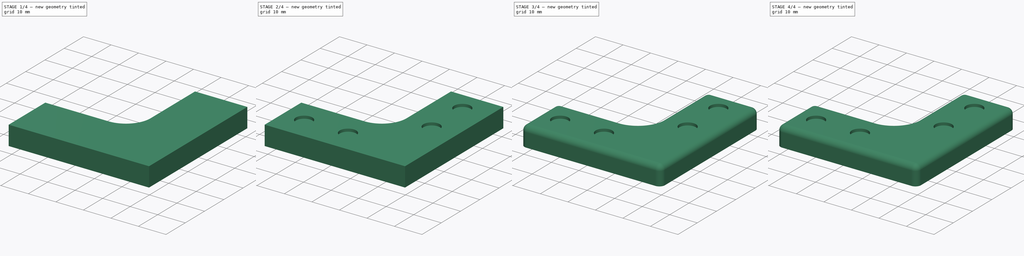
[diagram: build sequence overview — one tinted view per stage of 4, left to right]
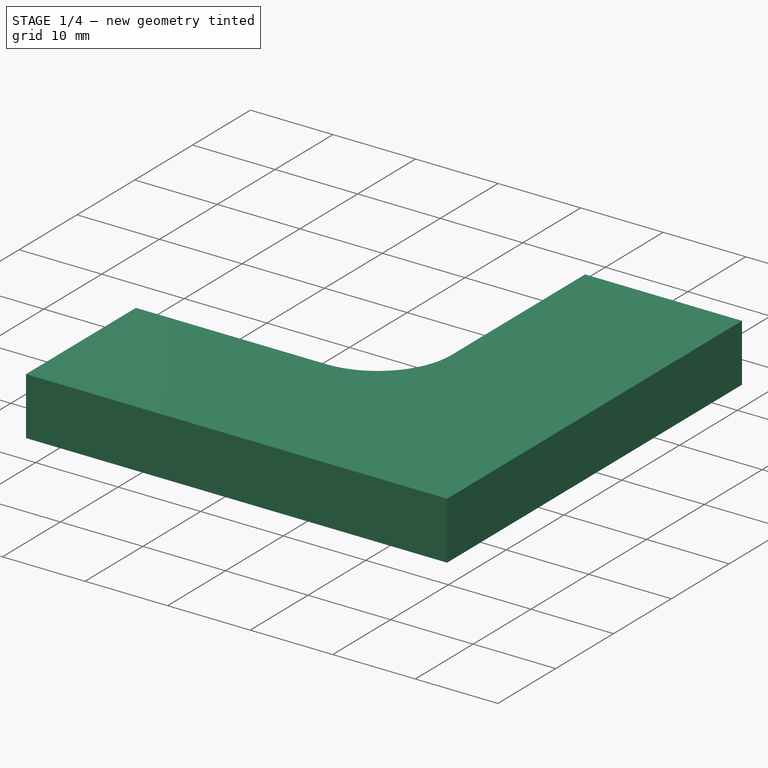
[diagram: stage 1 of 4 — iso view after this stage's code; geometry added in this stage tinted green]
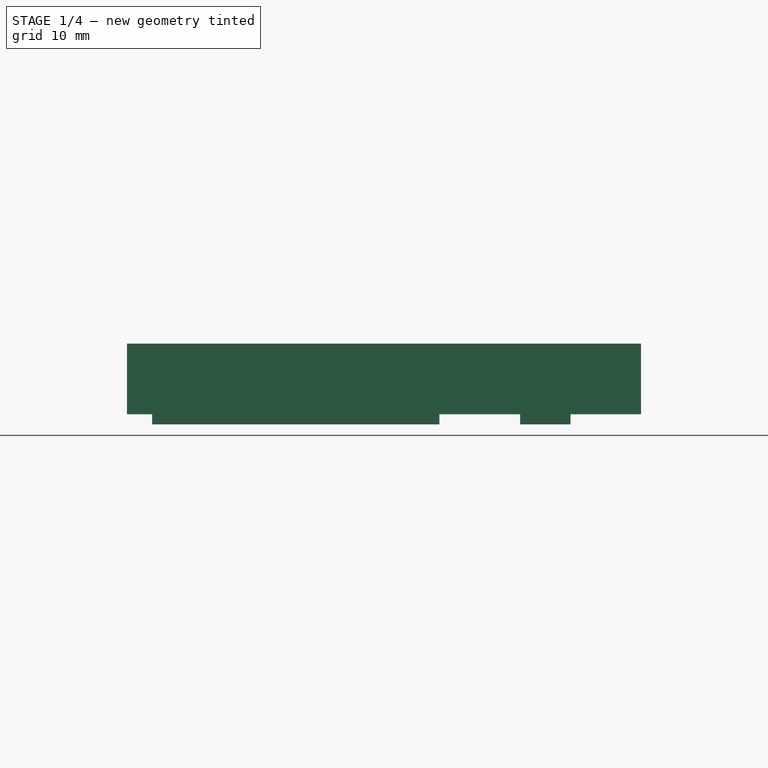
[diagram: stage 1 of 4 — front view after this stage's code; geometry added in this stage tinted green]
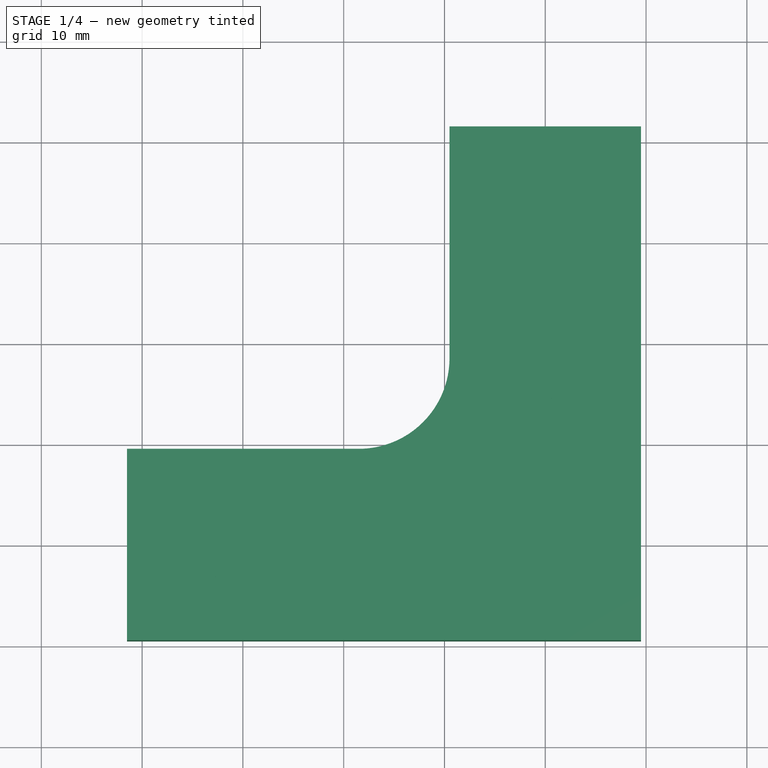
[diagram: stage 1 of 4 — top view after this stage's code; geometry added in this stage tinted green]
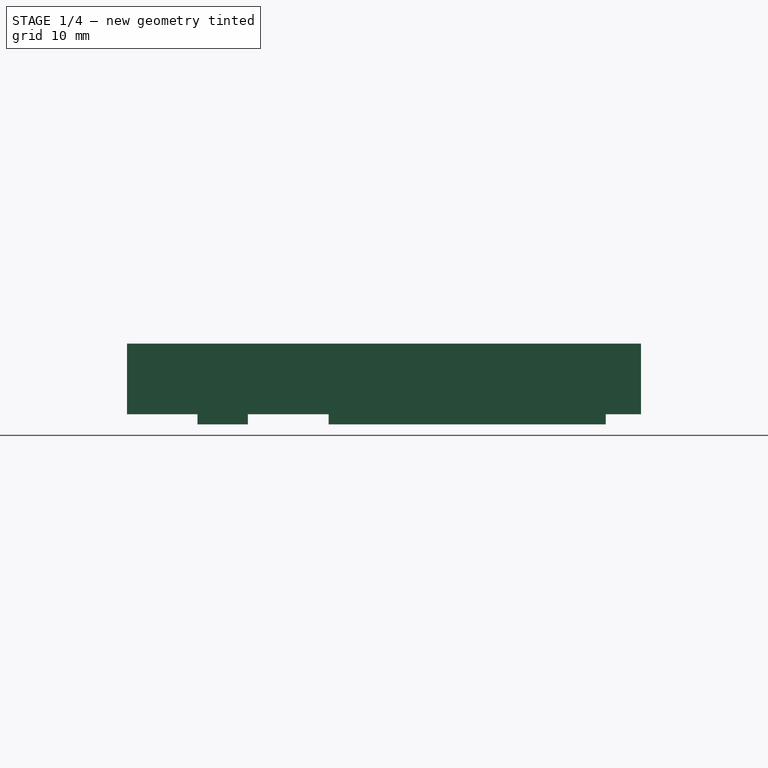
[diagram: stage 1 of 4 — right view after this stage's code; geometry added in this stage tinted green]
FCSTD DOCUMENT  (FreeCAD 0.15R4671 (Git))
Label: bracket1
License: All rights reserved
LicenseURL: https://ru.wikipedia.org/wiki/All_rights_reserved
objects: Sketcher::SketchObject×8, PartDesign::Pad×4, PartDesign::Pocket×4, Part::Feature×2, Part::Fillet×1, Part::Chamfer×1
note: 28 computed .brp shape members not serialized (recipe doc carries the construction recipe); baked Part::Feature solids carry a one-line shape summary decoded from their .brp

FEATURE [Sketcher::SketchObject] Sketch001
  sketch-geometry (7):
    g0: LineSegment StartX=-9.5 StartY=41.5 StartZ=0 EndX=9.5 EndY=41.5 EndZ=0
    g1: LineSegment StartX=9.5 StartY=41.5 StartZ=0 EndX=9.5 EndY=-9.5 EndZ=0
    g2: LineSegment StartX=9.5 StartY=-9.5 StartZ=0 EndX=-41.5 EndY=-9.5 EndZ=0
    g3: LineSegment StartX=-41.5 StartY=-9.5 StartZ=0 EndX=-41.5 EndY=9.5 EndZ=0
    g4: LineSegment StartX=-41.5 StartY=9.5 StartZ=0 EndX=-18.5 EndY=9.5 EndZ=0
    g5: LineSegment StartX=-9.5 StartY=18.5 StartZ=0 EndX=-9.5 EndY=41.5 EndZ=0
    g6: ArcOfCircle CenterX=-18.5 CenterY=18.5 CenterZ=0 NormalX=0 NormalY=0 NormalZ=1 Radius=9 StartAngle=4.71239 EndAngle=6.28319
  constraints (20):
    c: Horizontal(g0)
    c: Coincident(g0,g1)
    c: Vertical(g1)
    c: Coincident(g1,g2)
    c: Horizontal(g2)
    c: Coincident(g2,g3)
    c: Vertical(g3)
    c: Coincident(g3,g4)
    c: Horizontal(g4)
    c: Vertical(g5)
    c: Symmetric(g2,g3,g-1)
    c: Symmetric(g0,g0,g-2)
    c: Equal(g5,g4)
    c: Coincident(g5,g0)
    c: Equal(g1,g2)
    c: DistanceY(g3) = 19
    c: DistanceY(g1) = -51
    c: Tangent(g4,g6) = -1.5708
    c: Tangent(g5,g6) = -1.5708
    c: Radius(g6) = 9
FEATURE [PartDesign::Pad] Pad  label="body"
  Length = 7
  Length2 = 100
  Sketch = -> Sketch001
  Type = 0
FEATURE [Part::Feature] Pocket004
  shape: bbox 51 x 51 x 8 mm, 52 faces (baked)
FEATURE [Part::Chamfer] Chamfer
  Base = -> Pocket004
  Edges = 4 edges r=0.4: [Edge93,Edge94,Edge95,Edge96]
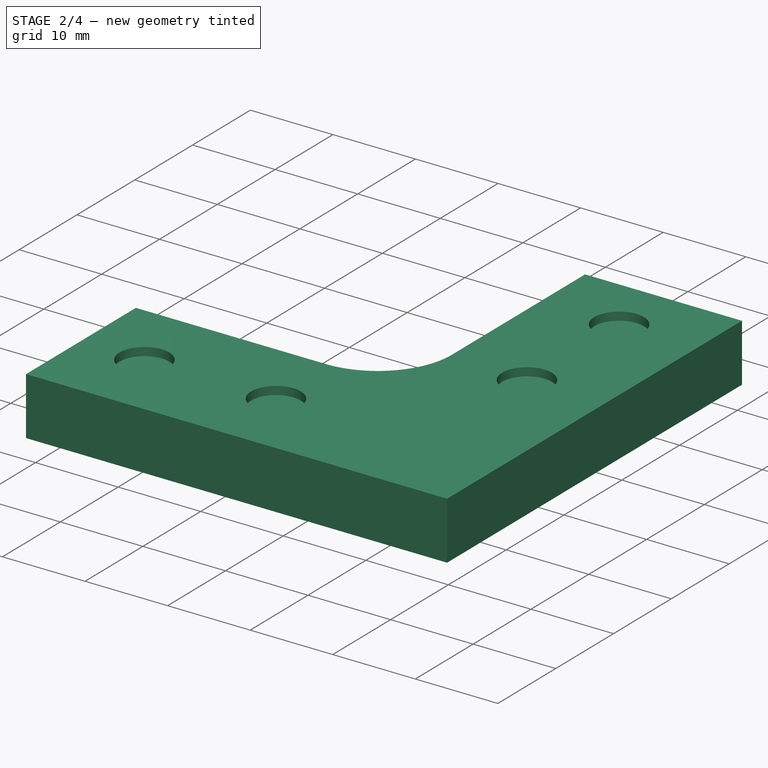
[diagram: stage 2 of 4 — iso view after this stage's code; geometry added in this stage tinted green]
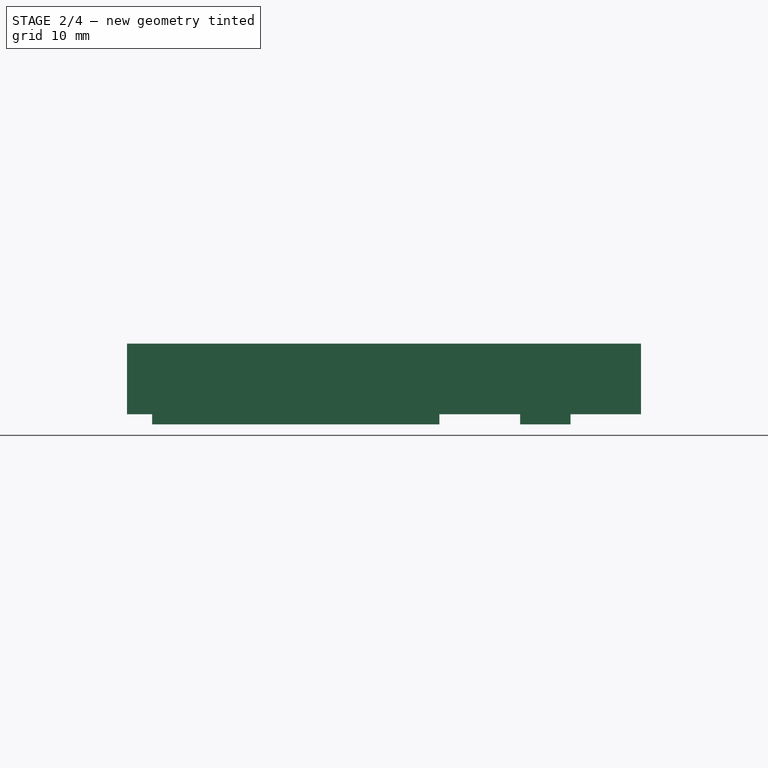
[diagram: stage 2 of 4 — front view after this stage's code; geometry added in this stage tinted green]
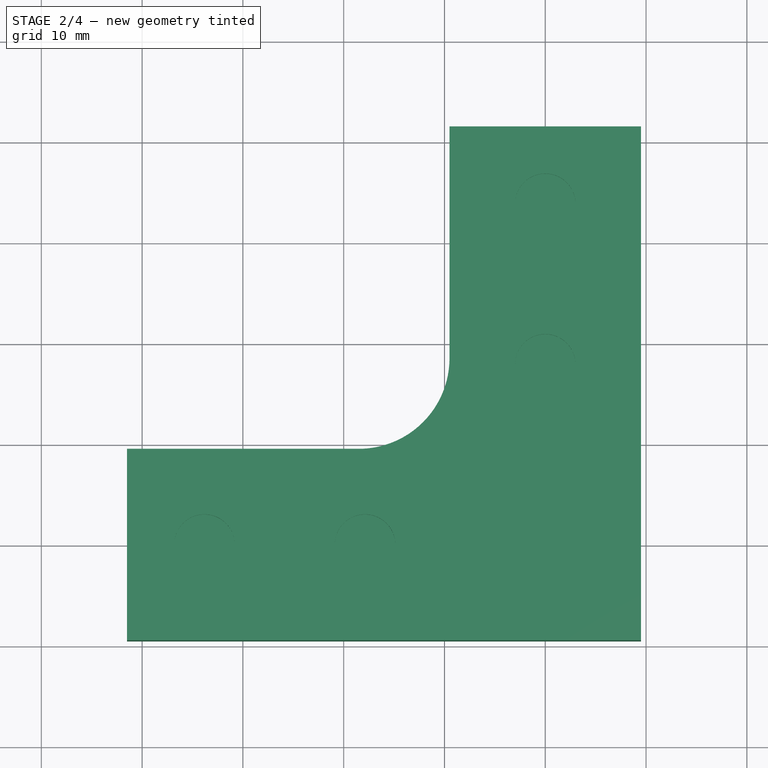
[diagram: stage 2 of 4 — top view after this stage's code; geometry added in this stage tinted green]
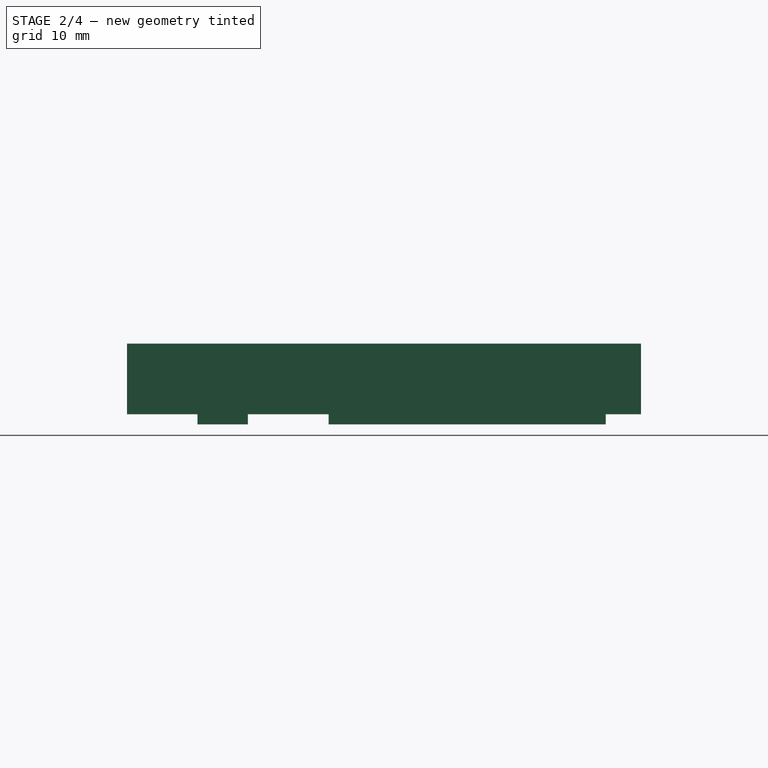
[diagram: stage 2 of 4 — right view after this stage's code; geometry added in this stage tinted green]
FEATURE [Sketcher::SketchObject] Sketch003  label="m3 heads"
  Placement = pos=(0,0,7) rot=(0,0,1;0rad)
  Support = -> Pad [Face9]
  sketch-geometry (8):
    g0: Circle CenterX=0 CenterY=33.8138 CenterZ=0 NormalX=0 NormalY=0 NormalZ=1 Radius=3
    g1: Circle CenterX=0 CenterY=17.8813 CenterZ=0 NormalX=0 NormalY=0 NormalZ=1 Radius=3
    g2: Circle CenterX=-17.8813 CenterY=0 CenterZ=0 NormalX=0 NormalY=0 NormalZ=1 Radius=3
    g3: Circle CenterX=-33.8138 CenterY=0 CenterZ=0 NormalX=0 NormalY=0 NormalZ=1 Radius=3
    g4: LineSegment [constr] StartX=0 StartY=33.8138 StartZ=0 EndX=0 EndY=17.8813 EndZ=0
    g5: LineSegment [constr] StartX=-33.8138 StartY=0 StartZ=0 EndX=-17.8813 EndY=0 EndZ=0
    g6: LineSegment [constr] StartX=-17.8813 StartY=0 StartZ=0 EndX=0 EndY=0 EndZ=0
    g7: LineSegment [constr] StartX=0 StartY=17.8813 StartZ=0 EndX=0 EndY=0 EndZ=0
  constraints (18):
    c: Radius(g0) = 3
    c: Radius(g1) = 3
    c: Radius(g3) = 3
    c: Radius(g2) = 3
    c: Vertical(g4)
    c: Coincident(g0,g4)
    c: Coincident(g1,g4)
    c: Coincident(g5,g3)
    c: Horizontal(g5)
    c: Coincident(g2,g5)
    c: Equal(g5,g4)
    c: Coincident(g6,g2)
    c: Coincident(g6,g-1)
    c: Horizontal(g6)
    c: Coincident(g7,g1)
    c: Vertical(g7)
    c: Coincident(g6,g7)
    c: Equal(g7,g6)
FEATURE [PartDesign::Pocket] Pocket
  Length = 1
  Sketch = -> Sketch003
  Type = 0
FEATURE [Sketcher::SketchObject] Sketch004  label="3mm holes"
  ExternalGeometry = -> [Pocket]
  Placement = pos=(0,0,0) rot=(1,0,0;3.14159rad)
  Support = -> Pocket [Face4]
  sketch-geometry (4):
    g0: Circle CenterX=-17.8813 CenterY=0 CenterZ=0 NormalX=0 NormalY=0 NormalZ=1 Radius=1.6
    g1: Circle CenterX=-33.8138 CenterY=0 CenterZ=0 NormalX=0 NormalY=0 NormalZ=1 Radius=1.6
    g2: Circle CenterX=0 CenterY=-17.8813 CenterZ=0 NormalX=0 NormalY=0 NormalZ=1 Radius=1.6
    g3: Circle CenterX=0 CenterY=-33.8138 CenterZ=0 NormalX=0 NormalY=0 NormalZ=1 Radius=1.6
  constraints (8):
    c: Coincident(g0,g-3)
    c: Radius(g0) = 1.6
    c: Coincident(g1,g-4)
    c: Radius(g1) = 1.6
    c: Radius(g2) = 1.6
    c: Radius(g3) = 1.6
    c: Coincident(g2,g-5)
    c: Coincident(g3,g-6)
FEATURE [PartDesign::Pocket] Pocket001
  Length = 5
  Sketch = -> Sketch004
  Type = 1
FEATURE [Sketcher::SketchObject] Sketch005  label="0.2mm print pads"
  ExternalGeometry = -> [Pocket001]
  Placement = pos=(0,0,6) rot=(0,0,1;0rad)
  Support = -> Pocket001 [Face21]
  sketch-geometry (4):
    g0: Circle CenterX=-33.8138 CenterY=0 CenterZ=0 NormalX=0 NormalY=0 NormalZ=1 Radius=2.16749
    g1: Circle CenterX=-17.8813 CenterY=0 CenterZ=0 NormalX=0 NormalY=0 NormalZ=1 Radius=2.14833
    g2: Circle CenterX=0 CenterY=17.8813 CenterZ=0 NormalX=0 NormalY=0 NormalZ=1 Radius=2.16578
    g3: Circle CenterX=0 CenterY=33.8138 CenterZ=0 NormalX=0 NormalY=0 NormalZ=1 Radius=2.45193
  constraints (4):
    c: Coincident(g0,g-3)
    c: Coincident(g1,g-4)
    c: Coincident(g2,g-5)
    c: Coincident(g3,g-6)
FEATURE [PartDesign::Pad] Pad001
  Length = 0.2
  Length2 = 100
  Reversed = true
  Sketch = -> Sketch005
  Type = 0
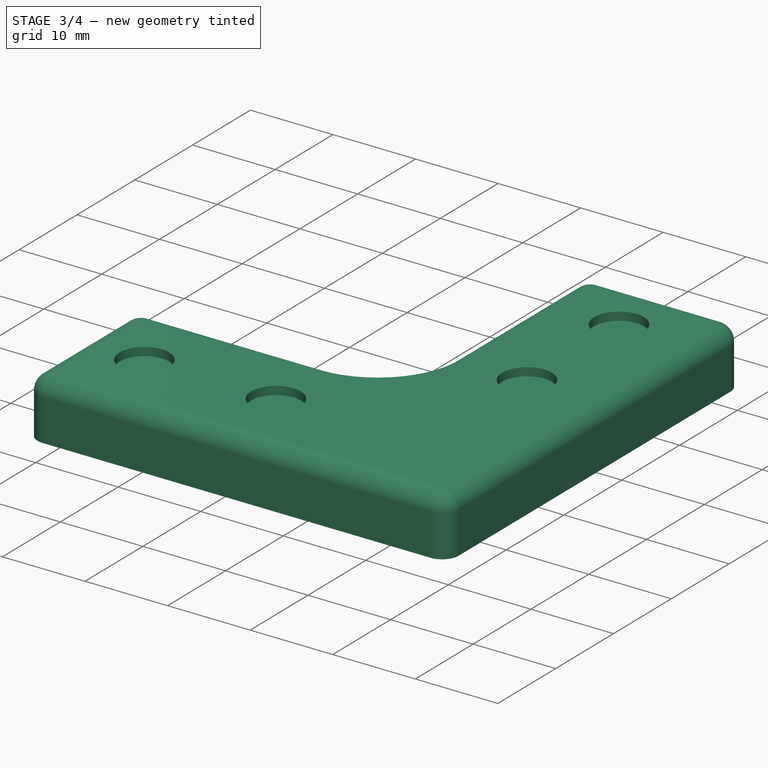
[diagram: stage 3 of 4 — iso view after this stage's code; geometry added in this stage tinted green]
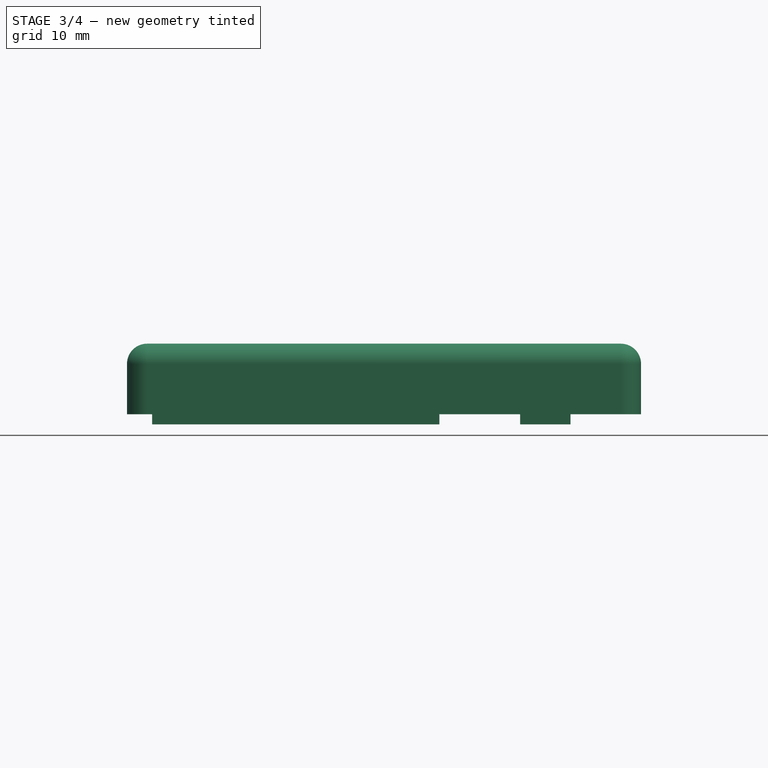
[diagram: stage 3 of 4 — front view after this stage's code; geometry added in this stage tinted green]
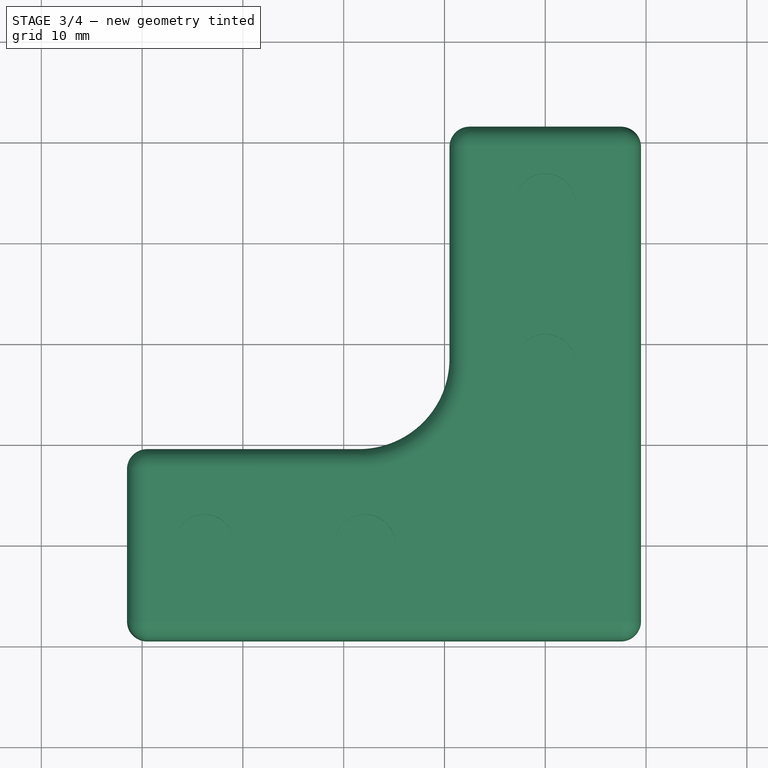
[diagram: stage 3 of 4 — top view after this stage's code; geometry added in this stage tinted green]
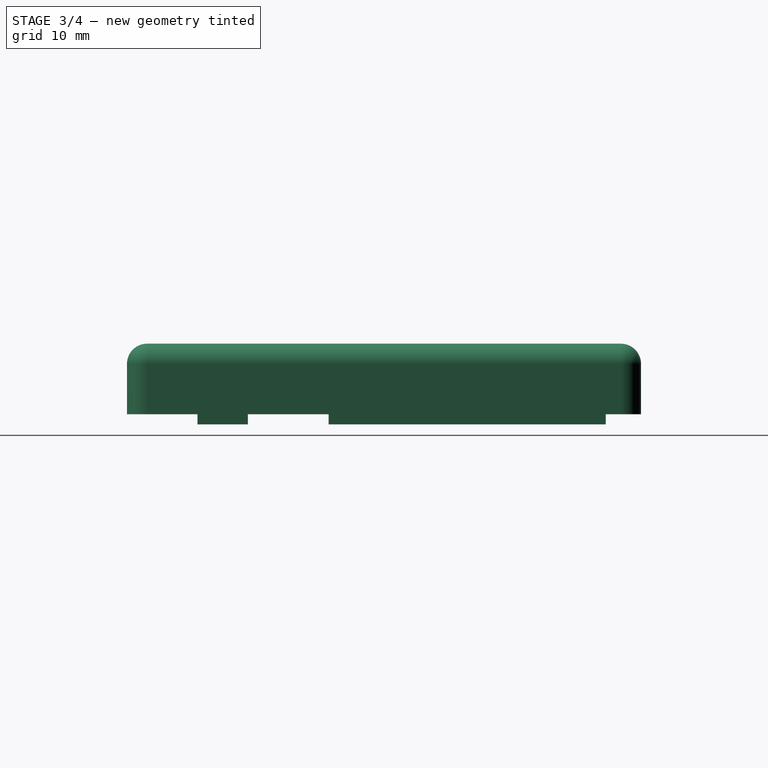
[diagram: stage 3 of 4 — right view after this stage's code; geometry added in this stage tinted green]
FEATURE [Part::Fillet] Fillet
  Base = -> Pad001
  Edges = 12 edges r=2: [Edge1,Edge2,Edge4,Edge7,Edge8,Edge10,Edge19,Edge20,Edge21,Edge22,Edge28,Edge29]
FEATURE [Part::Feature] Part__Feature  label="Brackets & Base017"
  Placement = pos=(53.705,164.6,-192.36) rot=(0,1,0;3.14159rad)
  shape: bbox 51 x 51 x 9 mm, 70 faces (baked)
FEATURE [Sketcher::SketchObject] Sketch
  ExternalGeometry = -> [Fillet]
  Placement = pos=(0,0,0) rot=(1,0,0;3.14159rad)
  Support = -> Fillet [Face2]
  sketch-geometry (7):
    g0: LineSegment StartX=-39 StartY=2.5 StartZ=0 EndX=-10.5 EndY=2.5 EndZ=0
    g1: LineSegment StartX=-10.5 StartY=2.5 StartZ=0 EndX=-10.5 EndY=-2.5 EndZ=0
    g2: LineSegment StartX=-10.5 StartY=-2.5 StartZ=0 EndX=-39 EndY=-2.5 EndZ=0
    g3: LineSegment StartX=-39 StartY=-2.5 StartZ=0 EndX=-39 EndY=2.5 EndZ=0
    g4: GeomPoint [constr] X=9.5 Y=1 Z=0
    g5: LineSegment [constr] StartX=-39 StartY=2.5 StartZ=0 EndX=-39 EndY=9.5 EndZ=0
    g6: LineSegment StartX=-39 StartY=-2.5 StartZ=0 EndX=-39 EndY=-9.5 EndZ=0
  constraints (18):
    c: Coincident(g0,g1)
    c: Coincident(g1,g2)
    c: Coincident(g2,g3)
    c: Coincident(g3,g0)
    c: Horizontal(g0)
    c: Horizontal(g2)
    c: Vertical(g1)
    c: Vertical(g3)
    c: DistanceY(g3) = 5
    c: PointOnObject(g4,g-5)
    c: DistanceX(g0,g4) = 20
    c: Vertical(g5)
    c: Coincident(g0,g5)
    c: PointOnObject(g5,g-3)
    c: Coincident(g6,g2)
    c: PointOnObject(g6,g-4)
    c: Vertical(g6)
    c: Equal(g5,g6)
FEATURE [PartDesign::Pad] Pad002
  Length = 1
  Length2 = 100
  Sketch = -> Sketch
  Type = 0
FEATURE [Sketcher::SketchObject] Sketch006
  ExternalGeometry = -> [Pad002]
  Placement = pos=(0,0,-1) rot=(1,0,0;3.14159rad)
  Support = -> Pad002 [Face1]
  sketch-geometry (2):
    g0: Circle CenterX=-33.8138 CenterY=0 CenterZ=0 NormalX=0 NormalY=0 NormalZ=1 Radius=1.6
    g1: Circle CenterX=-17.8813 CenterY=0 CenterZ=0 NormalX=0 NormalY=0 NormalZ=1 Radius=1.6
  constraints (4):
    c: Equal(g-3,g0)
    c: Coincident(g0,g-3)
    c: Coincident(g1,g-4)
    c: Equal(g-4,g1)
FEATURE [PartDesign::Pocket] Pocket002
  Length = 2
  Sketch = -> Sketch006
  Type = 0
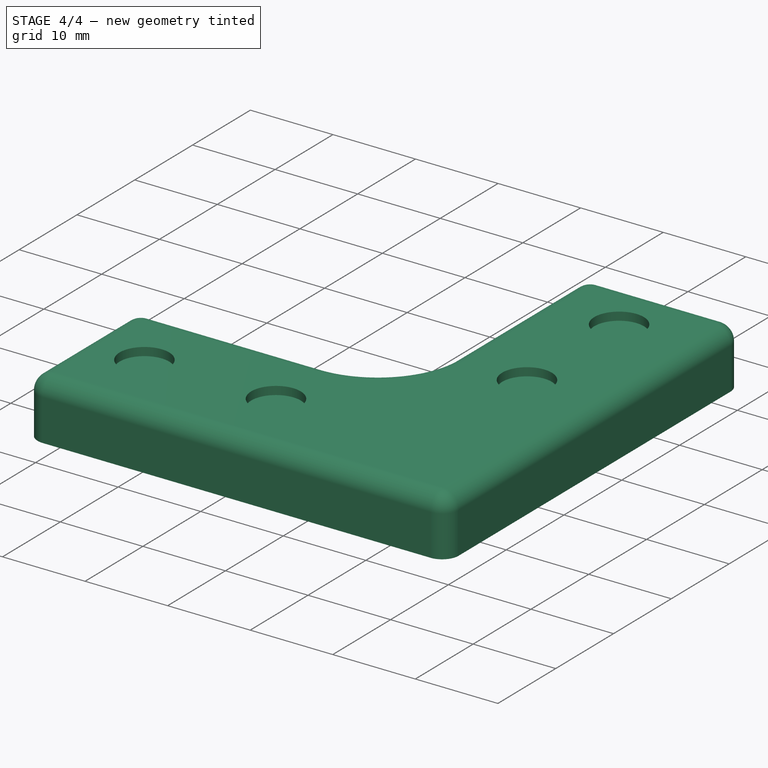
[diagram: stage 4 of 4 — iso view after this stage's code; geometry added in this stage tinted green]
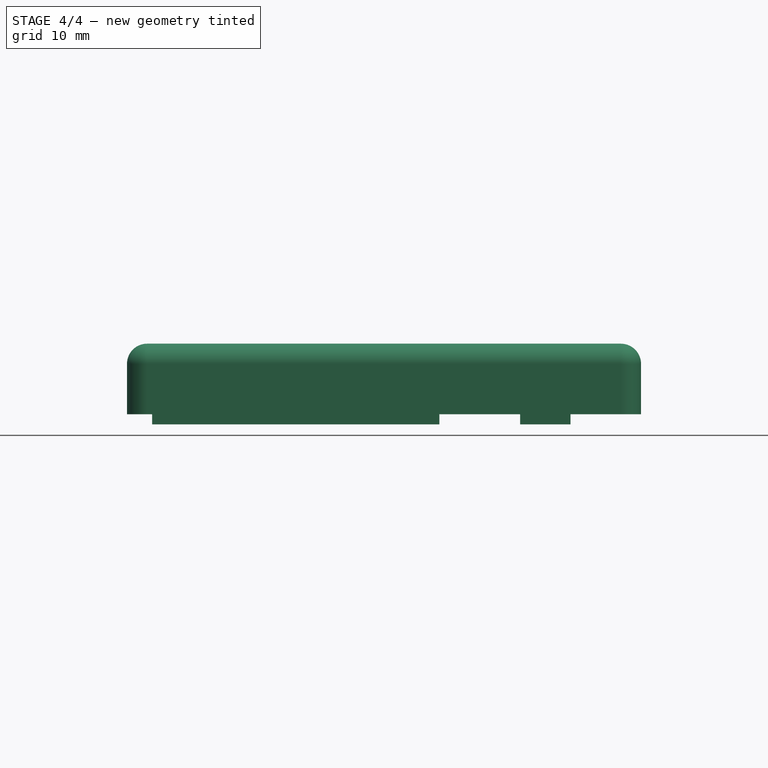
[diagram: stage 4 of 4 — front view after this stage's code; geometry added in this stage tinted green]
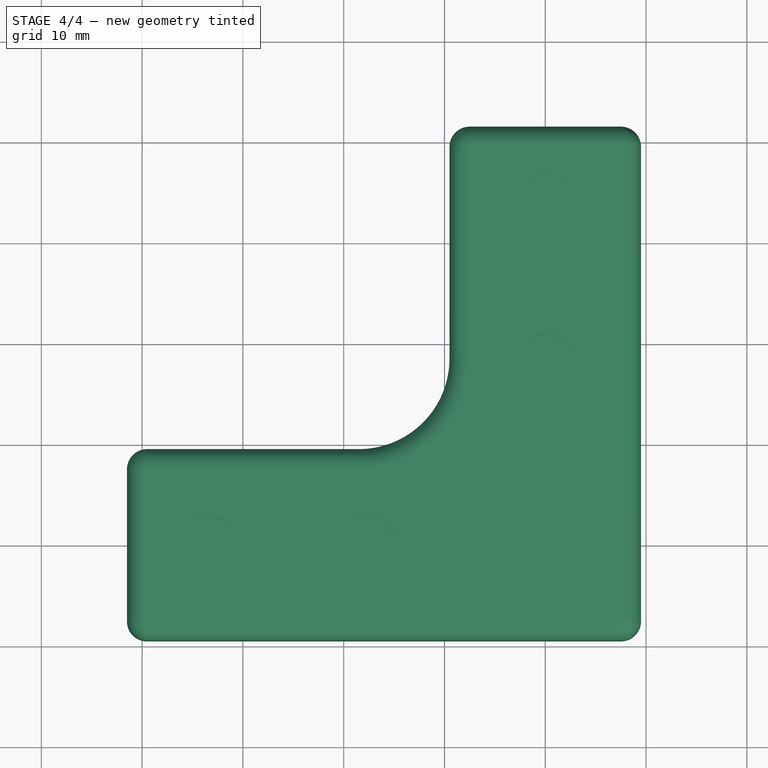
[diagram: stage 4 of 4 — top view after this stage's code; geometry added in this stage tinted green]
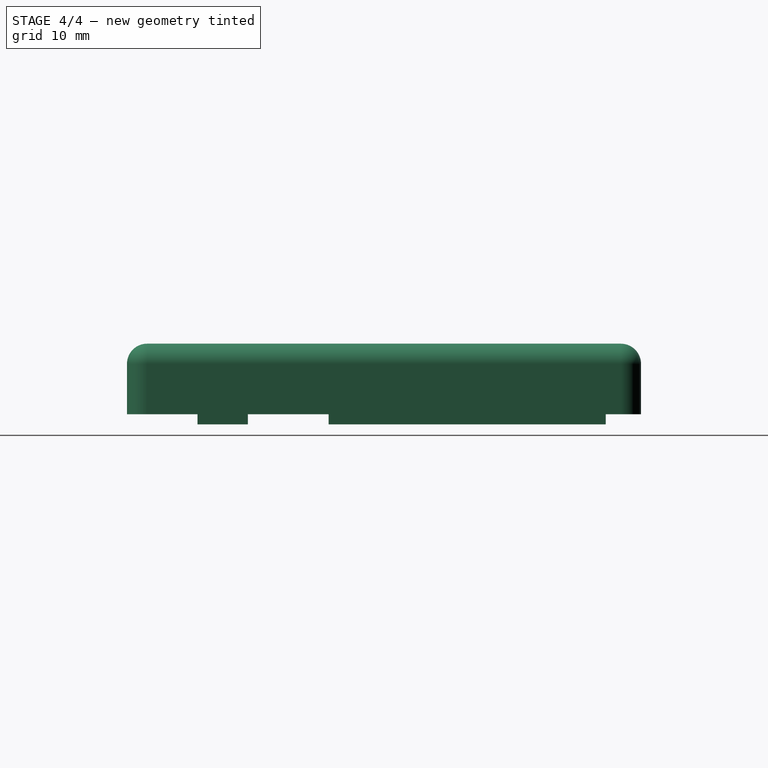
[diagram: stage 4 of 4 — right view after this stage's code; geometry added in this stage tinted green]
FEATURE [Sketcher::SketchObject] Sketch007
  ExternalGeometry = -> [Pocket002]
  Placement = pos=(0,0,0) rot=(1,0,0;3.14159rad)
  Support = -> Pocket002 [Face8]
  sketch-geometry (6):
    g0: LineSegment StartX=-2.5 StartY=-10.5 StartZ=0 EndX=2.5 EndY=-10.5 EndZ=0
    g1: LineSegment StartX=2.5 StartY=-10.5 StartZ=0 EndX=2.5 EndY=-38 EndZ=0
    g2: LineSegment StartX=2.5 StartY=-38 StartZ=0 EndX=-2.5 EndY=-38 EndZ=0
    g3: LineSegment StartX=-2.5 StartY=-38 StartZ=0 EndX=-2.5 EndY=-10.5 EndZ=0
    g4: LineSegment [constr] StartX=2.5 StartY=-38 StartZ=0 EndX=9.5 EndY=-38 EndZ=0
    g5: LineSegment [constr] StartX=-2.5 StartY=-38 StartZ=0 EndX=-9.5 EndY=-38 EndZ=0
  constraints (17):
    c: Coincident(g0,g1)
    c: Coincident(g1,g2)
    c: Coincident(g2,g3)
    c: Coincident(g3,g0)
    c: Horizontal(g0)
    c: Horizontal(g2)
    c: Vertical(g1)
    c: Vertical(g3)
    c: DistanceX(g2) = -5
    c: Coincident(g4,g1)
    c: PointOnObject(g4,g-4)
    c: Perpendicular(g4,g-4)
    c: Coincident(g5,g2)
    c: PointOnObject(g5,g-5)
    c: Horizontal(g5)
    c: Equal(g4,g5)
    c: DistanceY(g0,g-3) = 20
FEATURE [PartDesign::Pad] Pad003
  Length = 1
  Length2 = 100
  Sketch = -> Sketch007
  Type = 0
FEATURE [Sketcher::SketchObject] Sketch008
  ExternalGeometry = -> [Pad003]
  Placement = pos=(0,0,-1) rot=(1,0,0;3.14159rad)
  Support = -> Pad003 [Face41]
  sketch-geometry (2):
    g0: Circle CenterX=0 CenterY=-17.8813 CenterZ=0 NormalX=0 NormalY=0 NormalZ=1 Radius=1.6
    g1: Circle CenterX=0 CenterY=-33.8138 CenterZ=0 NormalX=0 NormalY=0 NormalZ=1 Radius=1.6
  constraints (4):
    c: Equal(g0,g-3)
    c: Coincident(g0,g-3)
    c: Coincident(g1,g-4)
    c: Equal(g1,g-4)
FEATURE [PartDesign::Pocket] Pocket003
  Length = 2
  Sketch = -> Sketch008
  Type = 0
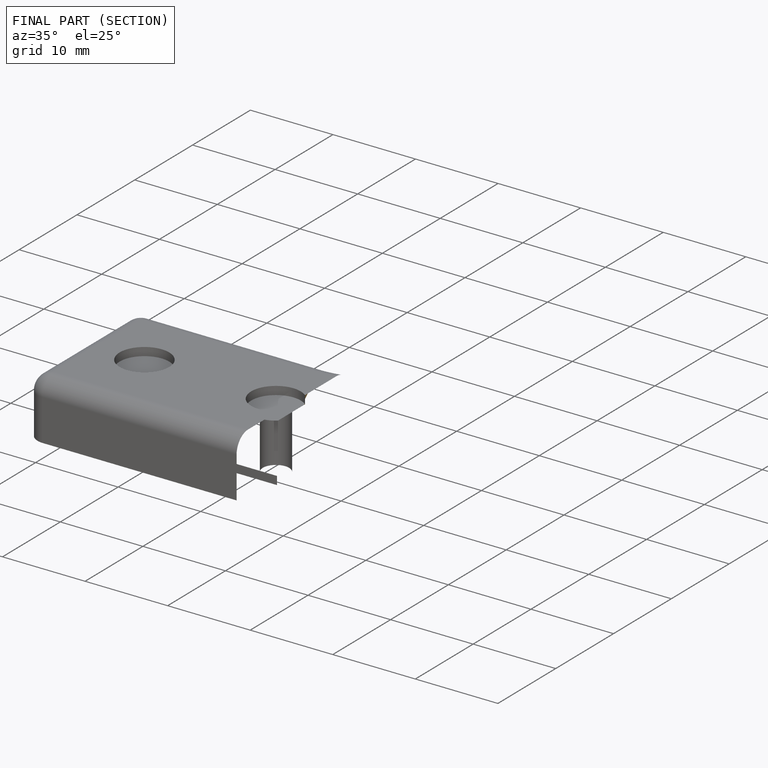
[diagram: finished part — half-section view (interior)]
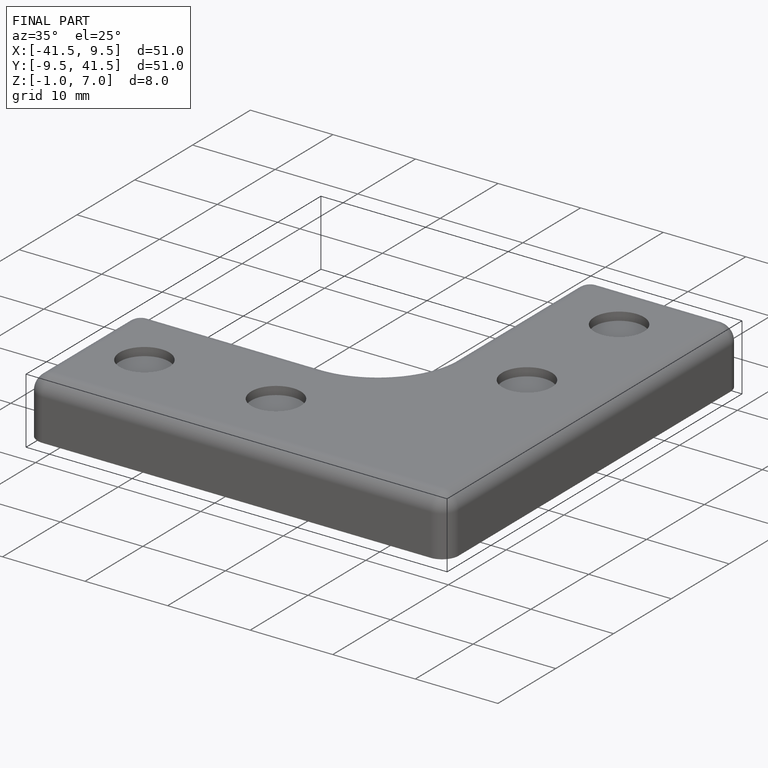
[diagram: finished part — iso view with bounding-box wireframe]
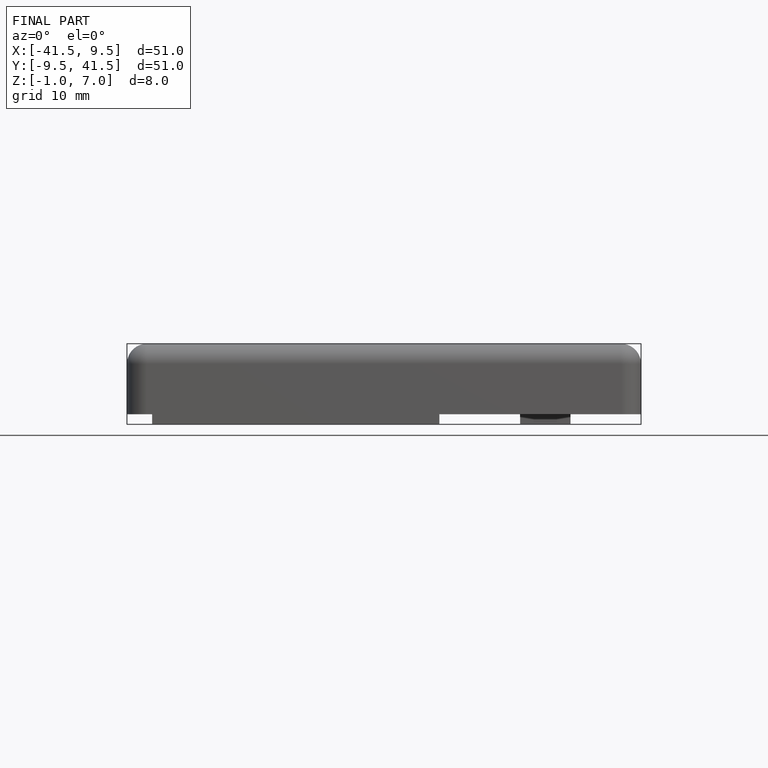
[diagram: finished part — front view with bounding-box wireframe]
